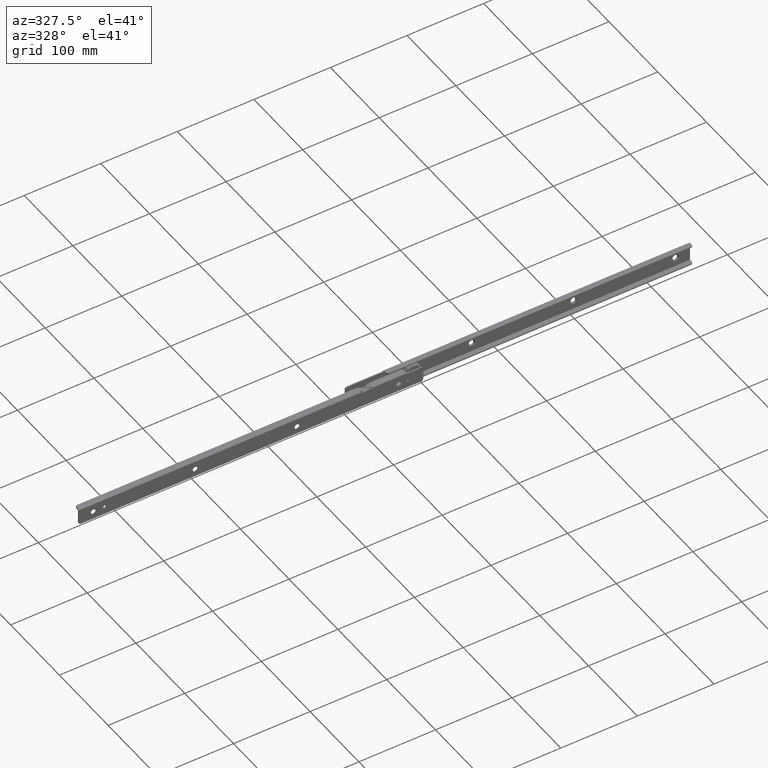
[diagram: clean part render]
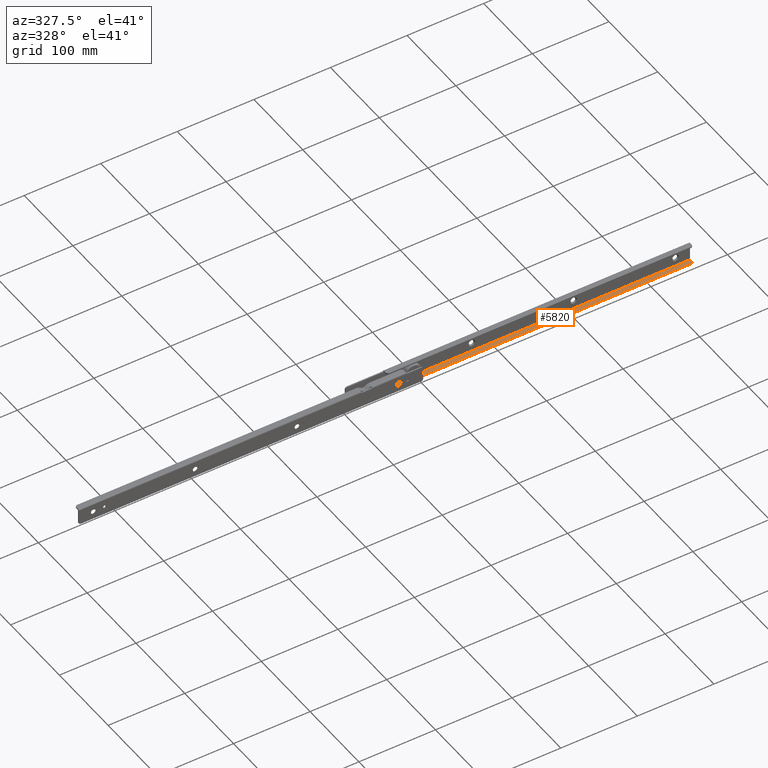
[diagram: same view with one face highlighted and labeled with its STEP entity id]
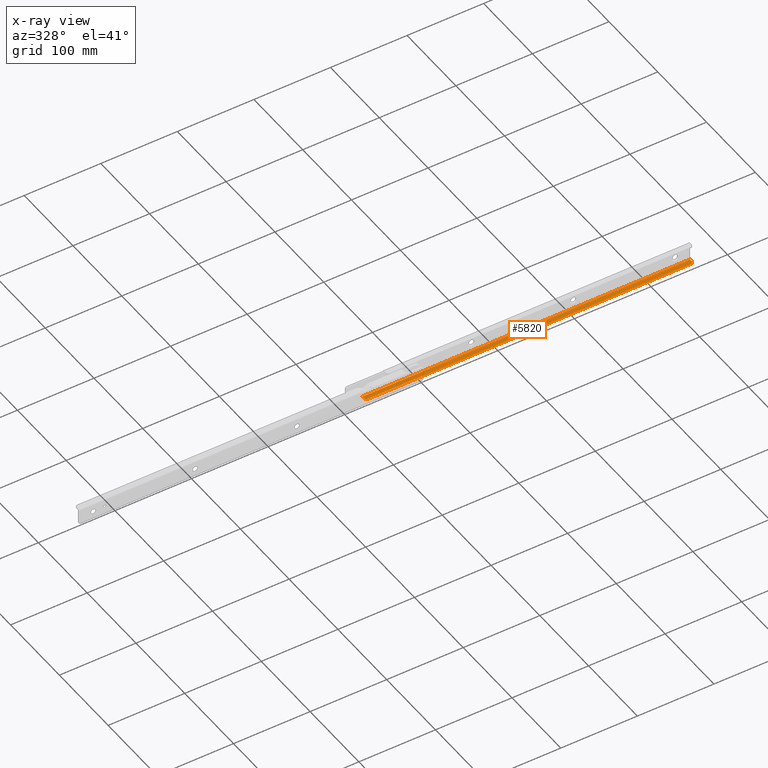
[diagram: x-ray of the same camera — body ghosted, the highlighted face saturated]
A machine part, auxiliary view. The second image highlights one B-rep face of the part: STEP entity #5820.
The next image is the same camera in x-ray: the body ghosted, the highlighted face saturated — about 0% of this face is hidden behind the body in this view.
In plain terms, the highlighted face is a freeform B-spline surface patch.
Its self-contained STEP definition (entity closure, byte-faithful):
#5142=CARTESIAN_POINT('',(22.0,-5.0,-18.600000000000001));
#5143=VERTEX_POINT('',#5142);
#5144=CARTESIAN_POINT('',(25.0,-8.0,-18.600000000000001));
#5145=VERTEX_POINT('',#5144);
#5146=CARTESIAN_POINT('',(22.0,-5.0,-18.600000000000001));
#5147=CARTESIAN_POINT('',(22.000000000000007,-8.0,-18.599999999999991));
#5148=CARTESIAN_POINT('',(25.0,-8.0,-18.600000000000001));
#5156=(BOUNDED_CURVE()B_SPLINE_CURVE(2,(#5146,#5147,#5148),.UNSPECIFIED.,.F.,.U.)CURVE()GEOMETRIC_REPRESENTATION_ITEM()QUASI_UNIFORM_CURVE()RATIONAL_B_SPLINE_CURVE((1.0,0.707106781186548,1.0))REPRESENTATION_ITEM(''));
#5157=EDGE_CURVE('',#5143,#5145,#5156,.T.);
#5203=CARTESIAN_POINT('',(447.0,-8.0,-18.600000000000001));
#5204=VERTEX_POINT('',#5203);
#5205=CARTESIAN_POINT('',(450.0,-5.0,-18.600000000000001));
#5206=VERTEX_POINT('',#5205);
#5207=CARTESIAN_POINT('',(447.0,-8.0,-18.600000000000001));
#5208=CARTESIAN_POINT('',(450.0,-8.0,-18.599999999999991));
#5209=CARTESIAN_POINT('',(450.0,-5.0,-18.600000000000001));
#5217=(BOUNDED_CURVE()B_SPLINE_CURVE(2,(#5207,#5208,#5209),.UNSPECIFIED.,.F.,.U.)CURVE()GEOMETRIC_REPRESENTATION_ITEM()QUASI_UNIFORM_CURVE()RATIONAL_B_SPLINE_CURVE((1.0,0.707106781186548,1.0))REPRESENTATION_ITEM(''));
#5218=EDGE_CURVE('',#5204,#5206,#5217,.T.);
#5503=CARTESIAN_POINT('',(22.0,-1.599999999999935,-18.600000000000001));
#5504=VERTEX_POINT('',#5503);
#5539=CARTESIAN_POINT('',(22.0,-1.599999999999935,-18.600000000000001));
#5540=CARTESIAN_POINT('',(22.0,-5.0,-18.600000000000001));
#5541=QUASI_UNIFORM_CURVE('',1,(#5539,#5540),.UNSPECIFIED.,.F.,.U.);
#5542=EDGE_CURVE('',#5504,#5143,#5541,.T.);
#5601=CARTESIAN_POINT('',(450.0,-1.599999999999910,-18.600000000000001));
#5602=VERTEX_POINT('',#5601);
#5608=CARTESIAN_POINT('',(450.0,-1.599999999999910,-18.600000000000001));
#5609=CARTESIAN_POINT('',(450.0,-5.0,-18.600000000000001));
#5610=QUASI_UNIFORM_CURVE('',1,(#5608,#5609),.UNSPECIFIED.,.F.,.U.);
#5611=EDGE_CURVE('',#5602,#5206,#5610,.T.);
#5794=CARTESIAN_POINT('',(447.0,-8.0,-18.600000000000001));
#5795=CARTESIAN_POINT('',(25.0,-8.0,-18.600000000000001));
#5796=QUASI_UNIFORM_CURVE('',1,(#5794,#5795),.UNSPECIFIED.,.F.,.U.);
#5797=EDGE_CURVE('',#5204,#5145,#5796,.T.);
#5803=CARTESIAN_POINT('',(471.378599170452900,-8.319679987595563,-18.600000000000001));
#5804=CARTESIAN_POINT('',(0.621389349692482,-8.319679987595563,-18.600000000000001));
#5805=CARTESIAN_POINT('',(471.378599170452900,-1.280319840742970,-18.600000000000001));
#5806=CARTESIAN_POINT('',(0.621389349692482,-1.280319840742970,-18.600000000000001));
#5807=B_SPLINE_SURFACE_WITH_KNOTS('',1,1,((#5803,#5805),(#5804,#5806)),.UNSPECIFIED.,.F.,.F.,.U.,(2,2),(2,2),(0.0,470.757209820760410),(0.0,7.039360146852593),.UNSPECIFIED.);
#5808=ORIENTED_EDGE('',*,*,#5797,.F.);
#5809=ORIENTED_EDGE('',*,*,#5218,.T.);
#5810=ORIENTED_EDGE('',*,*,#5611,.F.);
#5811=CARTESIAN_POINT('',(450.0,-1.599999999999910,-18.600000000000001));
#5812=CARTESIAN_POINT('',(22.0,-1.599999999999935,-18.600000000000001));
#5813=QUASI_UNIFORM_CURVE('',1,(#5811,#5812),.UNSPECIFIED.,.F.,.U.);
#5814=EDGE_CURVE('',#5602,#5504,#5813,.T.);
#5815=ORIENTED_EDGE('',*,*,#5814,.T.);
#5816=ORIENTED_EDGE('',*,*,#5542,.T.);
#5817=ORIENTED_EDGE('',*,*,#5157,.T.);
#5818=EDGE_LOOP('',(#5808,#5809,#5810,#5815,#5816,#5817));
#5819=FACE_OUTER_BOUND('',#5818,.T.);
#5820=ADVANCED_FACE('',(#5819),#5807,.F.);